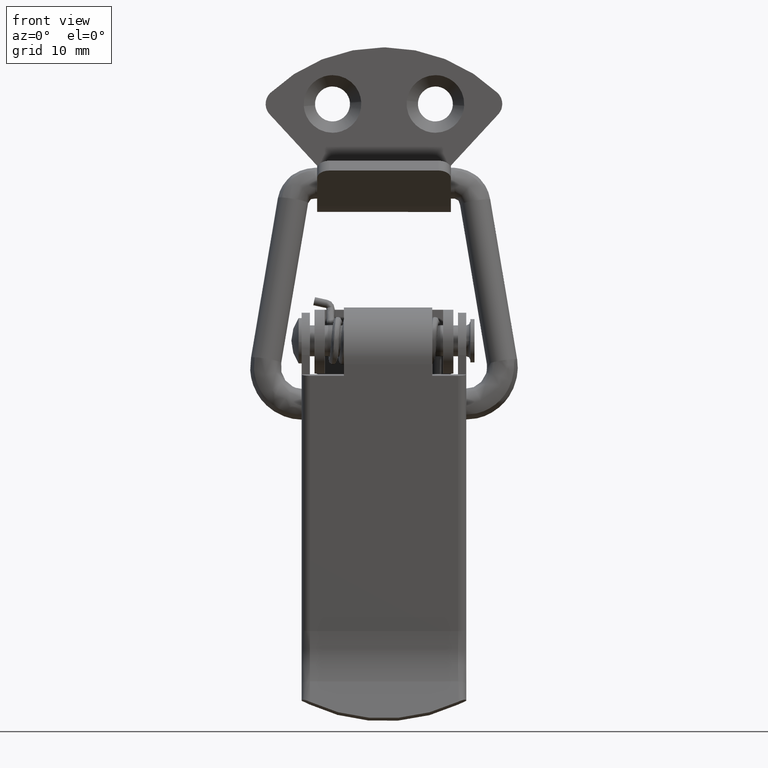
[diagram: clean part render]
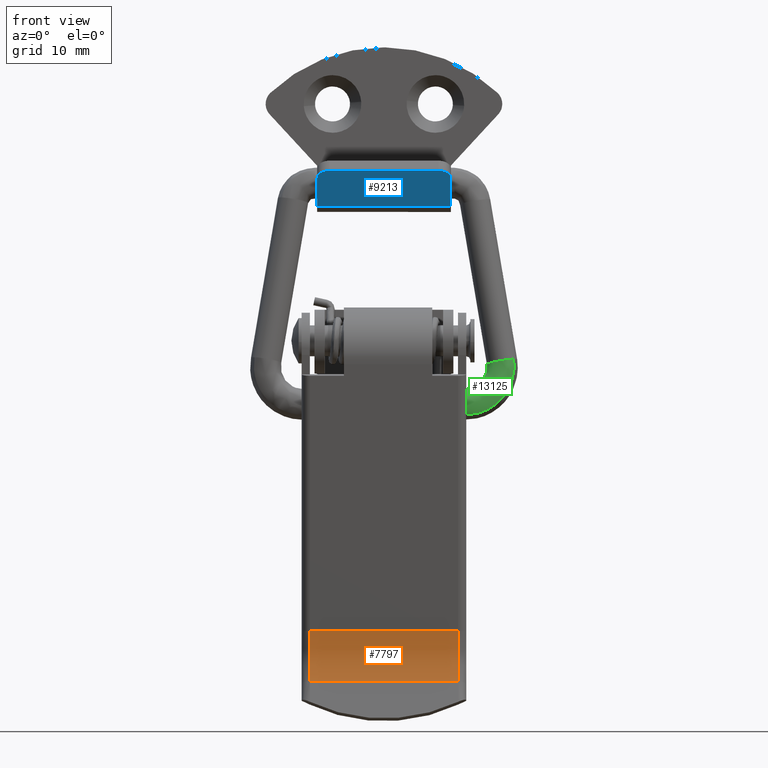
[diagram: same view with three faces highlighted in distinct colors, each labeled with its STEP entity id]
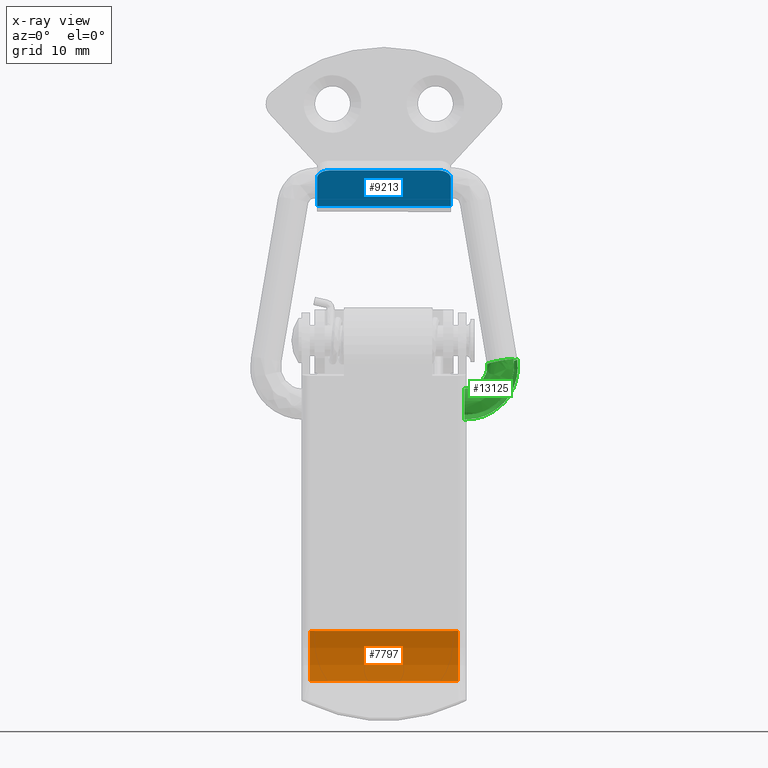
[diagram: x-ray of the same camera — body ghosted, the three highlighted faces saturated]
A machine part, front view with three faces highlighted in distinct colors.
The next image is the same camera in x-ray (body ghosted, the three faces saturated) — at least one of them is partly hidden behind the body in this view.
Their STEP definitions:

[orange] entity #7797 — the highlighted face is a freeform B-spline surface patch.
#6797=CARTESIAN_POINT('',(-2.790507143037480,7.200000000038510,-48.828581829893103));
#6798=VERTEX_POINT('',#6797);
#6844=CARTESIAN_POINT('',(-2.361913386887610,7.200000000038510,-43.929732780463347));
#6845=VERTEX_POINT('',#6844);
#6875=CARTESIAN_POINT('',(-2.361913386887625,7.200000000038510,-43.929732780463347));
#6876=CARTESIAN_POINT('',(-1.919888941644212,7.200000000038511,-46.436577980598912));
#6877=CARTESIAN_POINT('',(-2.790507143037486,7.200000000038510,-48.828581829893103));
#6885=(BOUNDED_CURVE()B_SPLINE_CURVE(2,(#6875,#6876,#6877),.UNSPECIFIED.,.F.,.U.)CURVE()GEOMETRIC_REPRESENTATION_ITEM()QUASI_UNIFORM_CURVE()RATIONAL_B_SPLINE_CURVE((1.0,0.965925826289068,1.0))REPRESENTATION_ITEM(''));
#6886=EDGE_CURVE('',#6845,#6798,#6885,.T.);
#6985=CARTESIAN_POINT('',(-2.361913386887610,-7.199999999961570,-43.929732780463347));
#6986=VERTEX_POINT('',#6985);
#7050=CARTESIAN_POINT('',(-2.790507143037480,-7.199999999961570,-48.828581829893103));
#7051=VERTEX_POINT('',#7050);
#7081=CARTESIAN_POINT('',(-2.790507143037488,-7.199999999961570,-48.828581829893103));
#7082=CARTESIAN_POINT('',(-1.919888941644212,-7.199999999961570,-46.436577980598919));
#7083=CARTESIAN_POINT('',(-2.361913386887625,-7.199999999961570,-43.929732780463361));
#7091=(BOUNDED_CURVE()B_SPLINE_CURVE(2,(#7081,#7082,#7083),.UNSPECIFIED.,.F.,.U.)CURVE()GEOMETRIC_REPRESENTATION_ITEM()QUASI_UNIFORM_CURVE()RATIONAL_B_SPLINE_CURVE((1.0,0.965925826289068,1.0))REPRESENTATION_ITEM(''));
#7092=EDGE_CURVE('',#7051,#6986,#7091,.T.);
#7764=CARTESIAN_POINT('',(-2.790507143037480,-7.199999999961570,-48.828581829893103));
#7765=CARTESIAN_POINT('',(-2.790507143037480,7.200000000038510,-48.828581829893103));
#7766=QUASI_UNIFORM_CURVE('',1,(#7764,#7765),.UNSPECIFIED.,.F.,.U.);
#7767=EDGE_CURVE('',#7051,#6798,#7766,.T.);
#7773=CARTESIAN_POINT('',(-2.877119383450284,-7.559999999961574,-49.057339807291108));
#7774=CARTESIAN_POINT('',(-2.877119383450284,7.569000000038512,-49.057339807291108));
#7775=CARTESIAN_POINT('',(-1.848300357566894,-7.559999999961573,-46.442223703869210));
#7776=CARTESIAN_POINT('',(-1.848300357566894,7.569000000038511,-46.442223703869210));
#7777=CARTESIAN_POINT('',(-2.407721154572937,-7.559999999961573,-43.688253988299849));
#7778=CARTESIAN_POINT('',(-2.407721154572937,7.569000000038511,-43.688253988299849));
#7786=(BOUNDED_SURFACE()B_SPLINE_SURFACE(1,2,((#7773,#7775,#7777),(#7774,#7776,#7778)),.UNSPECIFIED.,.F.,.F.,.U.)B_SPLINE_SURFACE_WITH_KNOTS((2,2),(3,3),(0.0,15.129000000000090),(0.0,5.502567149249801),.UNSPECIFIED.)GEOMETRIC_REPRESENTATION_ITEM()RATIONAL_B_SPLINE_SURFACE(((0.997173323268369,0.953808861718718,0.992163405002348),(0.997173323268369,0.953808861718718,0.992163405002348)))REPRESENTATION_ITEM('')SURFACE());
#7787=ORIENTED_EDGE('',*,*,#7767,.F.);
#7788=ORIENTED_EDGE('',*,*,#7092,.T.);
#7789=CARTESIAN_POINT('',(-2.361913386887610,-7.199999999961570,-43.929732780463347));
#7790=CARTESIAN_POINT('',(-2.361913386887610,7.200000000038510,-43.929732780463347));
#7791=QUASI_UNIFORM_CURVE('',1,(#7789,#7790),.UNSPECIFIED.,.F.,.U.);
#7792=EDGE_CURVE('',#6986,#6845,#7791,.T.);
#7793=ORIENTED_EDGE('',*,*,#7792,.T.);
#7794=ORIENTED_EDGE('',*,*,#6886,.T.);
#7795=EDGE_LOOP('',(#7787,#7788,#7793,#7794));
#7796=FACE_OUTER_BOUND('',#7795,.T.);
#7797=ADVANCED_FACE('',(#7796),#7786,.F.);

[blue] entity #9213 — the highlighted face is a freeform B-spline surface patch.
#8667=CARTESIAN_POINT('',(-6.199999999999590,5.300000000000080,0.828104566240683));
#8668=VERTEX_POINT('',#8667);
#8669=CARTESIAN_POINT('',(-5.247975991649800,6.500000000000100,0.097590851429855));
#8670=VERTEX_POINT('',#8669);
#8671=CARTESIAN_POINT('',(-6.199999999999590,5.300000000000080,0.828104566240683));
#8672=CARTESIAN_POINT('',(-6.199999999999574,5.797056274847905,0.828104566240674));
#8673=CARTESIAN_POINT('',(-5.921158623806288,6.148528137424075,0.614142052922361));
#8674=CARTESIAN_POINT('',(-5.642317247613004,6.500000000000246,0.400179539604048));
#8675=CARTESIAN_POINT('',(-5.247975991649800,6.500000000000100,0.097590851429855));
#8683=(BOUNDED_CURVE()B_SPLINE_CURVE(2,(#8671,#8672,#8673,#8674,#8675),.UNSPECIFIED.,.F.,.U.)B_SPLINE_CURVE_WITH_KNOTS((3,2,3),(0.0,0.500000000000000,1.0),.UNSPECIFIED.)CURVE()GEOMETRIC_REPRESENTATION_ITEM()RATIONAL_B_SPLINE_CURVE((1.0,0.923879532511251,1.0,0.923879532511251,1.0))REPRESENTATION_ITEM(''));
#8684=EDGE_CURVE('',#8668,#8670,#8683,.T.);
#8749=CARTESIAN_POINT('',(-6.199999999999590,-5.300000000000000,0.828104566240683));
#8750=VERTEX_POINT('',#8749);
#8756=CARTESIAN_POINT('',(-5.247975991650470,-6.500000000000000,0.097590851430373));
#8757=VERTEX_POINT('',#8756);
#8758=CARTESIAN_POINT('',(-5.247975991650470,-6.500000000000000,0.097590851430373));
#8759=CARTESIAN_POINT('',(-6.199999999999522,-6.499999999999595,0.828104566240729));
#8760=CARTESIAN_POINT('',(-6.199999999999590,-5.300000000000000,0.828104566240683));
#8768=(BOUNDED_CURVE()B_SPLINE_CURVE(2,(#8758,#8759,#8760),.UNSPECIFIED.,.F.,.U.)CURVE()GEOMETRIC_REPRESENTATION_ITEM()QUASI_UNIFORM_CURVE()RATIONAL_B_SPLINE_CURVE((1.0,0.707106781186667,1.0))REPRESENTATION_ITEM(''));
#8769=EDGE_CURVE('',#8757,#8750,#8768,.T.);
#8784=CARTESIAN_POINT('',(-1.704532001224340,6.499999999998489,-2.621389352815635));
#8785=VERTEX_POINT('',#8784);
#8786=CARTESIAN_POINT('',(-1.704532001224340,6.499999999998489,-2.621389352815635));
#8787=CARTESIAN_POINT('',(-5.247975991649800,6.500000000000100,0.097590851429855));
#8788=QUASI_UNIFORM_CURVE('',1,(#8786,#8787),.UNSPECIFIED.,.F.,.U.);
#8789=EDGE_CURVE('',#8785,#8670,#8788,.T.);
#8932=CARTESIAN_POINT('',(-1.704532001224340,-6.500000000001520,-2.621389352815635));
#8933=VERTEX_POINT('',#8932);
#8934=CARTESIAN_POINT('',(-5.247975991650470,-6.500000000000000,0.097590851430373));
#8935=CARTESIAN_POINT('',(-1.704532001224340,-6.500000000001520,-2.621389352815635));
#8936=QUASI_UNIFORM_CURVE('',1,(#8934,#8935),.UNSPECIFIED.,.F.,.U.);
#8937=EDGE_CURVE('',#8757,#8933,#8936,.T.);
#9182=CARTESIAN_POINT('',(-1.704532001224340,6.499999999998489,-2.621389352815635));
#9183=CARTESIAN_POINT('',(-1.704532001224340,-6.500000000001520,-2.621389352815635));
#9184=QUASI_UNIFORM_CURVE('',1,(#9182,#9183),.UNSPECIFIED.,.F.,.U.);
#9185=EDGE_CURVE('',#8785,#8933,#9184,.T.);
#9196=CARTESIAN_POINT('',(-1.479983399459556,-7.149349974805079,-2.793691555062669));
#9197=CARTESIAN_POINT('',(-6.424548400801321,-7.149349974805079,1.000406614283290));
#9198=CARTESIAN_POINT('',(-1.479983399459556,7.149350323490830,-2.793691555062669));
#9199=CARTESIAN_POINT('',(-6.424548400801321,7.149350323490830,1.000406614283290));
#9200=B_SPLINE_SURFACE_WITH_KNOTS('',1,1,((#9196,#9198),(#9197,#9199)),.UNSPECIFIED.,.F.,.F.,.U.,(2,2),(2,2),(0.0,6.232487783472040),(0.0,14.298700298295911),.UNSPECIFIED.);
#9201=ORIENTED_EDGE('',*,*,#8937,.F.);
#9202=ORIENTED_EDGE('',*,*,#8769,.T.);
#9203=CARTESIAN_POINT('',(-6.199999999999590,5.300000000000080,0.828104566240683));
#9204=CARTESIAN_POINT('',(-6.199999999999590,-5.300000000000000,0.828104566240683));
#9205=QUASI_UNIFORM_CURVE('',1,(#9203,#9204),.UNSPECIFIED.,.F.,.U.);
#9206=EDGE_CURVE('',#8668,#8750,#9205,.T.);
#9207=ORIENTED_EDGE('',*,*,#9206,.F.);
#9208=ORIENTED_EDGE('',*,*,#8684,.T.);
#9209=ORIENTED_EDGE('',*,*,#8789,.F.);
#9210=ORIENTED_EDGE('',*,*,#9185,.T.);
#9211=EDGE_LOOP('',(#9201,#9202,#9207,#9208,#9209,#9210));
#9212=FACE_OUTER_BOUND('',#9211,.T.);
#9213=ADVANCED_FACE('',(#9212),#9200,.T.);

[green] entity #13125 — the highlighted face is a freeform B-spline surface patch.
#12160=CARTESIAN_POINT('',(-1.087470120130206,-12.793823550704820,-17.628184217619349));
#12161=VERTEX_POINT('',#12160);
#12167=CARTESIAN_POINT('',(-0.330922227011682,-11.216846421213230,-17.970061983739310));
#12168=VERTEX_POINT('',#12167);
#12169=CARTESIAN_POINT('',(-0.330922227011682,-11.216846421213230,-17.970061983739310));
#12170=CARTESIAN_POINT('',(-0.323208595262400,-11.254935952752311,-17.964428172564109));
#12171=CARTESIAN_POINT('',(-0.317032860912607,-11.293313590069260,-17.958590585117850));
#12172=CARTESIAN_POINT('',(-0.266672929620274,-11.717342862969289,-17.892287160493218));
#12173=CARTESIAN_POINT('',(-0.380921290484208,-12.116484220646980,-17.813554300788951));
#12174=CARTESIAN_POINT('',(-0.748865987434872,-12.572771085775869,-17.699586509160660));
#12175=CARTESIAN_POINT('',(-0.908569863140957,-12.701123745336380,-17.661853243353839));
#12176=CARTESIAN_POINT('',(-1.087470120130206,-12.793823550704820,-17.628184217619349));
#12177=B_SPLINE_CURVE_WITH_KNOTS('',3,(#12169,#12170,#12171,#12172,#12173,#12174,#12175,#12176),.UNSPECIFIED.,.F.,.U.,(4,2,2,4),(0.737495048420838,0.750000000000000,0.875000000000000,0.940036262975326),.UNSPECIFIED.);
#12178=EDGE_CURVE('',#12168,#12161,#12177,.T.);
#12269=CARTESIAN_POINT('',(-1.969604485741077,-10.008558962770230,-18.008037156503100));
#12270=VERTEX_POINT('',#12269);
#12271=CARTESIAN_POINT('',(-1.969604485741077,-10.008558962770230,-18.008037156503100));
#12272=CARTESIAN_POINT('',(-1.581509952644368,-9.969650839488889,-18.053771057223329));
#12273=CARTESIAN_POINT('',(-1.176974130213577,-10.089613320299970,-18.074418082834971));
#12274=CARTESIAN_POINT('',(-0.594122953052786,-10.555038553331960,-18.054907702450350));
#12275=CARTESIAN_POINT('',(-0.400285128629959,-10.874298283260551,-18.020728944063961));
#12276=CARTESIAN_POINT('',(-0.330922227011682,-11.216846421213230,-17.970061983739310));
#12277=B_SPLINE_CURVE_WITH_KNOTS('',3,(#12271,#12272,#12273,#12274,#12275,#12276),.UNSPECIFIED.,.F.,.U.,(4,2,4),(0.500000000000000,0.625000000000000,0.737495048420838),.UNSPECIFIED.);
#12278=EDGE_CURVE('',#12270,#12168,#12277,.T.);
#12280=CARTESIAN_POINT('',(-2.755908091746378,-12.596367690307680,-17.492975387880779));
#12281=VERTEX_POINT('',#12280);
#12282=CARTESIAN_POINT('',(-2.755908091746378,-12.596367690307680,-17.492975387880779));
#12283=CARTESIAN_POINT('',(-3.042503300131364,-12.351988172122010,-17.505182466434501));
#12284=CARTESIAN_POINT('',(-3.233380554328527,-11.999004950979680,-17.545337693495970));
#12285=CARTESIAN_POINT('',(-3.323015717338375,-11.243730286179240,-17.663442955035450));
#12286=CARTESIAN_POINT('',(-3.208707451982580,-10.844742925923560,-17.742155936502652));
#12287=CARTESIAN_POINT('',(-2.724552054916020,-10.244762871260621,-17.892048433199601));
#12288=CARTESIAN_POINT('',(-2.357686271148560,-10.047464753662441,-17.962304935509451));
#12289=CARTESIAN_POINT('',(-1.969604485741077,-10.008558962770230,-18.008037156503100));
#12290=B_SPLINE_CURVE_WITH_KNOTS('',3,(#12282,#12283,#12284,#12285,#12286,#12287,#12288,#12289),.UNSPECIFIED.,.F.,.U.,(4,2,2,4),(0.129999973043368,0.250000000000000,0.375000000000000,0.500000000000000),.UNSPECIFIED.);
#12291=EDGE_CURVE('',#12281,#12270,#12290,.T.);
#12293=CARTESIAN_POINT('',(-1.620236052314972,-12.952371609362521,-17.547701627254352));
#12294=VERTEX_POINT('',#12293);
#12304=CARTESIAN_POINT('',(-1.087470120130206,-12.793823550704820,-17.628184217619349));
#12305=CARTESIAN_POINT('',(-1.252552893350440,-12.879025542070339,-17.597172560172361));
#12306=CARTESIAN_POINT('',(-1.433955350786946,-12.933919598360969,-17.569615734699969));
#12307=CARTESIAN_POINT('',(-1.620236052314972,-12.952371609362521,-17.547701627254352));
#12308=B_SPLINE_CURVE_WITH_KNOTS('',3,(#12304,#12305,#12306,#12307),.UNSPECIFIED.,.F.,.U.,(4,4),(0.940036262975326,1.0),.UNSPECIFIED.);
#12309=EDGE_CURVE('',#12161,#12294,#12308,.T.);
#12329=CARTESIAN_POINT('',(-0.714637346262169,-7.829629975996859,-21.771303482676270));
#12330=VERTEX_POINT('',#12329);
#12331=CARTESIAN_POINT('',(-1.658141471450089,-7.829629975996859,-23.283786567556550));
#12332=VERTEX_POINT('',#12331);
#12333=CARTESIAN_POINT('',(-0.714637346262169,-7.829629975996859,-21.771303482676270));
#12334=CARTESIAN_POINT('',(-0.711537730637880,-7.829629975996859,-21.810450188404861));
#12335=CARTESIAN_POINT('',(-0.709976325275512,-7.829629975996859,-21.849718331070282));
#12336=CARTESIAN_POINT('',(-0.709978391142118,-7.829629975996861,-22.085339342246030));
#12337=CARTESIAN_POINT('',(-0.749021310536569,-7.829629975996859,-22.281611893202388));
#12338=CARTESIAN_POINT('',(-0.899304745938325,-7.829629975996861,-22.644419086147799));
#12339=CARTESIAN_POINT('',(-1.010486131831204,-7.829629975996858,-22.810810978999019));
#12340=CARTESIAN_POINT('',(-1.288170268825211,-7.829629975996860,-23.088491704764060));
#12341=CARTESIAN_POINT('',(-1.454563763076102,-7.829629975996858,-23.199671282169842));
#12342=CARTESIAN_POINT('',(-1.643335457847693,-7.829629975996859,-23.277862602307621));
#12343=CARTESIAN_POINT('',(-1.650726699847485,-7.829629975996859,-23.280854448905490));
#12344=CARTESIAN_POINT('',(-1.658141471450089,-7.829629975996859,-23.283786567556550));
#12345=B_SPLINE_CURVE_WITH_KNOTS('',3,(#12333,#12334,#12335,#12336,#12337,#12338,#12339,#12340,#12341,#12342,#12343,#12344),.UNSPECIFIED.,.F.,.U.,(4,2,2,2,2,4),(0.737499592925876,0.750000000000000,0.812500000000000,0.875000000000000,0.937500000000000,0.940038078780311),.UNSPECIFIED.);
#12346=EDGE_CURVE('',#12330,#12332,#12345,.T.);
#12406=CARTESIAN_POINT('',(-2.209994493836288,-7.829629975996860,-23.388990918474850));
#12407=VERTEX_POINT('',#12406);
#12408=CARTESIAN_POINT('',(-1.658141471450089,-7.829629975996859,-23.283786567556550));
#12409=CARTESIAN_POINT('',(-1.833313464981698,-7.829629975996859,-23.353057095654361));
#12410=CARTESIAN_POINT('',(-2.021618427828611,-7.829629975996862,-23.388991259378770));
#12411=CARTESIAN_POINT('',(-2.209994493836288,-7.829629975996860,-23.388990918474850));
#12412=B_SPLINE_CURVE_WITH_KNOTS('',3,(#12408,#12409,#12410,#12411),.UNSPECIFIED.,.F.,.U.,(4,4),(0.940038078780311,1.0),.UNSPECIFIED.);
#12413=EDGE_CURVE('',#12332,#12407,#12412,.T.);
#12415=CARTESIAN_POINT('',(-3.303425674992386,-7.829629975996859,-22.915804680043340));
#12416=VERTEX_POINT('',#12415);
#12428=CARTESIAN_POINT('',(-2.209994493836293,-7.829629975996861,-20.388990918474850));
#12429=VERTEX_POINT('',#12428);
#12430=CARTESIAN_POINT('',(-3.303425674992386,-7.829629975996859,-22.915804680043340));
#12431=CARTESIAN_POINT('',(-3.427040587936353,-7.829629975996858,-22.784088861505730));
#12432=CARTESIAN_POINT('',(-3.526675502746189,-7.829629975996857,-22.629901739197241));
#12433=CARTESIAN_POINT('',(-3.670945758976619,-7.829629975996859,-22.281605471817219));
#12434=CARTESIAN_POINT('',(-3.709987294567935,-7.829629975996857,-22.085333702856449));
#12435=CARTESIAN_POINT('',(-3.709988499942832,-7.829629975996860,-21.692635752394430));
#12436=CARTESIAN_POINT('',(-3.670948169252147,-7.829629975996858,-21.496364080767702));
#12437=CARTESIAN_POINT('',(-3.520670050012211,-7.829629975996860,-21.133558669209400));
#12438=CARTESIAN_POINT('',(-3.409491389485702,-7.829629975996858,-20.967167677714730));
#12439=CARTESIAN_POINT('',(-3.131812427010670,-7.829629975996861,-20.689488640130641));
#12440=CARTESIAN_POINT('',(-2.965421379876430,-7.829629975996859,-20.578309848885031));
#12441=CARTESIAN_POINT('',(-2.602615679037063,-7.829629975996861,-20.428031301580582));
#12442=CARTESIAN_POINT('',(-2.406343773882681,-7.829629975996859,-20.388990673712900));
#12443=CARTESIAN_POINT('',(-2.209994493836293,-7.829629975996861,-20.388990918474850));
#12444=B_SPLINE_CURVE_WITH_KNOTS('',3,(#12430,#12431,#12432,#12433,#12434,#12435,#12436,#12437,#12438,#12439,#12440,#12441,#12442,#12443),.UNSPECIFIED.,.F.,.U.,(4,2,2,2,2,2,4),(0.129999065407237,0.187500000000000,0.250000000000000,0.312500000000000,0.375000000000000,0.437500000000000,0.500000000000000),.UNSPECIFIED.);
#12445=EDGE_CURVE('',#12416,#12429,#12444,.T.);
#12447=CARTESIAN_POINT('',(-2.209994493836293,-7.829629975996861,-20.388990918474850));
#12448=CARTESIAN_POINT('',(-2.013643619720058,-7.829629975996861,-20.388990812895990));
#12449=CARTESIAN_POINT('',(-1.817369756226630,-7.829629975996859,-20.428031672950240));
#12450=CARTESIAN_POINT('',(-1.454559705344186,-7.829629975996861,-20.578310835638181));
#12451=CARTESIAN_POINT('',(-1.288166268217472,-7.829629975996859,-20.689490009838590));
#12452=CARTESIAN_POINT('',(-1.010482456050607,-7.829629975996861,-20.967169906136970));
#12453=CARTESIAN_POINT('',(-0.899301337732885,-7.829629975996859,-21.133561373053240));
#12454=CARTESIAN_POINT('',(-0.764047369909554,-7.829629975996861,-21.460085936125221));
#12455=CARTESIAN_POINT('',(-0.727037676163386,-7.829629975996860,-21.614723297259211));
#12456=CARTESIAN_POINT('',(-0.714637346262169,-7.829629975996859,-21.771303482676270));
#12457=B_SPLINE_CURVE_WITH_KNOTS('',3,(#12447,#12448,#12449,#12450,#12451,#12452,#12453,#12454,#12455,#12456),.UNSPECIFIED.,.F.,.U.,(4,2,2,2,4),(0.500000000000000,0.562500000000000,0.625000000000000,0.687500000000000,0.737499592925876),.UNSPECIFIED.);
#12458=EDGE_CURVE('',#12429,#12330,#12457,.T.);
#12980=CARTESIAN_POINT('',(-3.275359540627173,-7.788165511742517,-22.945275574695192));
#12981=CARTESIAN_POINT('',(-3.549953552481467,-7.790341836505415,-22.667474647432631));
#12982=CARTESIAN_POINT('',(-3.709953913381004,-7.793579864302064,-22.279241280252570));
#12983=CARTESIAN_POINT('',(-3.709957288629869,-7.800396562820446,-21.495923403780719));
#12984=CARTESIAN_POINT('',(-3.548300069838655,-7.803934643811587,-21.105666455731910));
#12985=CARTESIAN_POINT('',(-2.993427612949430,-7.809254381599595,-20.550348433703601));
#12986=CARTESIAN_POINT('',(-2.209967266897114,-7.812755711009180,-20.227061603177091));
#12987=CARTESIAN_POINT('',(-1.426501642463856,-7.810630857652850,-20.550361070977509));
#12988=CARTESIAN_POINT('',(-0.871621144281466,-7.806290364555048,-21.105200502006522));
#12989=CARTESIAN_POINT('',(-0.548296999096419,-7.799757196442588,-21.888616034551429));
#12990=CARTESIAN_POINT('',(-0.871612557187495,-7.792655380986004,-22.672042689037269));
#12991=CARTESIAN_POINT('',(-1.436633684815285,-7.787246186561241,-23.236558570389011));
#12992=CARTESIAN_POINT('',(-1.844550647358027,-7.785468547502316,-23.399637459884559));
#12993=CARTESIAN_POINT('',(-2.250947350378273,-7.785207990426010,-23.388545933504570));
#12994=CARTESIAN_POINT('',(-3.276666660913341,-8.492141713283640,-22.958222014535899));
#12995=CARTESIAN_POINT('',(-3.551211142077712,-8.457363088659676,-22.679930508135371));
#12996=CARTESIAN_POINT('',(-3.711134781932718,-8.405618051794434,-22.290937253604088));
#12997=CARTESIAN_POINT('',(-3.710966063475526,-8.296684618829675,-21.505914866512221));
#12998=CARTESIAN_POINT('',(-3.549212468082754,-8.240144924987986,-21.114703351610860));
#12999=CARTESIAN_POINT('',(-2.994183385333802,-8.155134108689072,-20.557834020893011));
#13000=CARTESIAN_POINT('',(-2.210611462721599,-8.099182202149688,-20.233442074688728));
#13001=CARTESIAN_POINT('',(-1.427213778721760,-8.133137753537891,-20.557414461948380));
#13002=CARTESIAN_POINT('',(-0.872466162962060,-8.202499824698599,-21.113570033625720));
#13003=CARTESIAN_POINT('',(-0.549327139458170,-8.306901798693353,-21.898819113121078));
#13004=CARTESIAN_POINT('',(-0.872815573971837,-8.420391677350976,-22.683958030646821));
#13005=CARTESIAN_POINT('',(-1.437962205309235,-8.506832922670018,-23.249716969635550));
#13006=CARTESIAN_POINT('',(-1.845918837585397,-8.535240391953549,-23.413188769939179));
#13007=CARTESIAN_POINT('',(-2.252321271727154,-8.539404212623689,-23.402154007730410));
#13008=CARTESIAN_POINT('',(-3.263137883013464,-9.199895785544596,-22.824225611765460));
#13009=CARTESIAN_POINT('',(-3.538507747025766,-9.128112861088841,-22.554109147458291));
#13010=CARTESIAN_POINT('',(-3.699662306438050,-9.021309521152702,-22.177307591896529));
#13011=CARTESIAN_POINT('',(-3.702094992342637,-8.796460721925156,-21.418050933199119));
#13012=CARTESIAN_POINT('',(-3.541698326543075,-8.679752565083620,-21.040279189531852));
#13013=CARTESIAN_POINT('',(-2.988720644522920,-8.504265864075924,-20.503728051280760));
#13014=CARTESIAN_POINT('',(-2.206507002723681,-8.388758062917070,-20.192789259666519));
#13015=CARTESIAN_POINT('',(-1.422284800798708,-8.458856515058642,-20.508595171328992));
#13016=CARTESIAN_POINT('',(-0.865858549441843,-8.602043884916274,-21.048124619815869));
#13017=CARTESIAN_POINT('',(-0.540207096056245,-8.817553616064057,-21.808489222548310));
#13018=CARTESIAN_POINT('',(-0.860991429393918,-9.051802844158017,-22.566845246443361));
#13019=CARTESIAN_POINT('',(-1.424084314279384,-9.230218652674019,-23.112262759930250));
#13020=CARTESIAN_POINT('',(-1.831367516322865,-9.288851083739321,-23.269064539759889));
#13021=CARTESIAN_POINT('',(-2.237671321941654,-9.297445076997091,-23.257052906845999));
#13022=CARTESIAN_POINT('',(-3.206133164633303,-10.475915218587531,-22.259619787447608));
#13023=CARTESIAN_POINT('',(-3.484611207280636,-10.337851132009691,-22.020288419712799));
#13024=CARTESIAN_POINT('',(-3.650390318590825,-10.132430334742381,-21.689290948629822));
#13025=CARTESIAN_POINT('',(-3.662558888624542,-9.699966147477563,-21.026463796831170));
#13026=CARTESIAN_POINT('',(-3.507215650271546,-9.475494865576371,-20.698743955007881));
#13027=CARTESIAN_POINT('',(-2.961836488668558,-9.137971544167156,-20.237452707614029));
#13028=CARTESIAN_POINT('',(-2.184624299296607,-8.915808973027797,-19.976051028903779));
#13029=CARTESIAN_POINT('',(-1.397366855854443,-9.050633220433019,-20.261794252994619));
#13030=CARTESIAN_POINT('',(-0.834740635224370,-9.326033443818316,-20.739915823997642));
#13031=CARTESIAN_POINT('',(-0.499757676479004,-9.740535282615271,-21.407856107734059));
#13032=CARTESIAN_POINT('',(-0.810399090002731,-10.191079836965679,-22.065751121291701));
#13033=CARTESIAN_POINT('',(-1.365766625042855,-10.534236873555139,-22.534652556083550));
#13034=CARTESIAN_POINT('',(-1.770511060786532,-10.647007885607040,-22.666309009699830));
#13035=CARTESIAN_POINT('',(-2.176442749130655,-10.663537190287309,-22.650611724323689));
#13036=CARTESIAN_POINT('',(-3.163967556632713,-11.043445814137760,-21.841988606386550));
#13037=CARTESIAN_POINT('',(-3.444705148957563,-10.876131611155159,-21.625037051139731));
#13038=CARTESIAN_POINT('',(-3.613846166377653,-10.627190573536449,-21.327337731935099));
#13039=CARTESIAN_POINT('',(-3.633092422861634,-10.103104965150770,-20.734611847295980));
#13040=CARTESIAN_POINT('',(-3.481422869861379,-9.831077426673899,-20.443278189035759));
#13041=CARTESIAN_POINT('',(-2.941567597423862,-9.422046759039182,-20.036698552968140));
#13042=CARTESIAN_POINT('',(-2.167991309164227,-9.152817052429928,-19.811308822092609));
#13043=CARTESIAN_POINT('',(-1.378527339084458,-9.316205027220711,-20.075197402804580));
#13044=CARTESIAN_POINT('',(-0.811393932687797,-9.649951260718932,-20.508677347510510));
#13045=CARTESIAN_POINT('',(-0.469627258355240,-10.152269035835310,-21.109428011863240));
#13046=CARTESIAN_POINT('',(-0.772895083079064,-10.698265499412759,-21.694290979988718));
#13047=CARTESIAN_POINT('',(-1.322646527863075,-11.114123435374969,-22.107567593561900));
#13048=CARTESIAN_POINT('',(-1.725545359074630,-11.250785998888430,-22.220944173197289));
#13049=CARTESIAN_POINT('',(-2.131206529675873,-11.270817185179940,-22.202567532541948));
#13050=CARTESIAN_POINT('',(-3.006129429651815,-12.413737774368959,-20.278673703246611));
#13051=CARTESIAN_POINT('',(-3.295226210579683,-12.176479373072340,-20.144516111479319));
#13052=CARTESIAN_POINT('',(-3.476804576696901,-11.823470772785290,-19.970003077783709));
#13053=CARTESIAN_POINT('',(-3.522234685875626,-11.080295887630230,-19.636616352332350));
#13054=CARTESIAN_POINT('',(-3.384155906753504,-10.694549682382361,-19.479893131709471));
#13055=CARTESIAN_POINT('',(-2.864736224565755,-10.114527421574071,-19.275718728160552));
#13056=CARTESIAN_POINT('',(-2.104610927643825,-9.732748656662297,-19.183554952399948));
#13057=CARTESIAN_POINT('',(-1.306983927334941,-9.964439505352077,-19.366592429160111));
#13058=CARTESIAN_POINT('',(-0.723176217970805,-10.437705351180441,-19.634920982202569));
#13059=CARTESIAN_POINT('',(-0.356313234144394,-11.150012556041039,-19.987104108432820));
#13060=CARTESIAN_POINT('',(-0.632302517451661,-11.924257932425419,-20.301785523163790));
#13061=CARTESIAN_POINT('',(-1.161277274681319,-12.513961539732660,-20.509278490460321));
#13062=CARTESIAN_POINT('',(-1.557348304528544,-12.707754659256970,-20.555028801130149));
#13063=CARTESIAN_POINT('',(-1.962008696587758,-12.736159702887850,-20.526739903912450));
#13064=CARTESIAN_POINT('',(-2.859265017176734,-12.845947078943141,-18.824048456003691));
#13065=CARTESIAN_POINT('',(-3.156010517255114,-12.588598430233510,-18.765647950694639));
#13066=CARTESIAN_POINT('',(-3.348968478307432,-12.205751256748149,-18.703844632215969));
#13067=CARTESIAN_POINT('',(-3.418353299995310,-11.399943233078970,-18.607718445504709));
#13068=CARTESIAN_POINT('',(-3.292706762730936,-10.981810074429321,-18.574130929368650));
#13069=CARTESIAN_POINT('',(-2.791978257769063,-10.353292957904211,-18.555084140080510));
#13070=CARTESIAN_POINT('',(-2.044154064568340,-9.939741065362842,-18.584757205138221));
#13071=CARTESIAN_POINT('',(-1.239061913312468,-10.190710200027899,-18.693855755098429));
#13072=CARTESIAN_POINT('',(-0.640004262152718,-10.703457083750250,-18.811140566597079));
#13073=CARTESIAN_POINT('',(-0.250185778433771,-11.475444487976191,-18.935959900898581));
#13074=CARTESIAN_POINT('',(-0.501217499237797,-12.315053295631539,-19.003448003540569));
#13075=CARTESIAN_POINT('',(-1.011181962443750,-12.954649088042631,-19.022652649675940));
#13076=CARTESIAN_POINT('',(-1.401005327777792,-13.164865762381330,-19.006522683220052));
#13077=CARTESIAN_POINT('',(-1.804749955479545,-13.195679537777790,-18.969163556304238));
#13078=CARTESIAN_POINT('',(-2.720617991366896,-12.616511967556461,-17.450812684910950));
#13079=CARTESIAN_POINT('',(-3.024548839934728,-12.371455794670810,-17.463579790361909));
#13080=CARTESIAN_POINT('',(-3.228198323895284,-12.006843599626359,-17.507671146577160));
#13081=CARTESIAN_POINT('',(-3.320093942032887,-11.239234695283949,-17.634504166683261));
#13082=CARTESIAN_POINT('',(-3.206133209342172,-10.840802356290110,-17.716659233218280));
#13083=CARTESIAN_POINT('',(-2.722978384385453,-10.241698774772530,-17.871671756521629));
#13084=CARTESIAN_POINT('',(-1.986723173453299,-9.847356098491007,-18.015930332452900));
#13085=CARTESIAN_POINT('',(-1.174610084626546,-10.086671749157951,-18.055489687027531));
#13086=CARTESIAN_POINT('',(-0.561212242529476,-10.575509479315700,-18.030741425406081));
#13087=CARTESIAN_POINT('',(-0.149813563939711,-11.311246176046710,-17.941818738497570));
#13088=CARTESIAN_POINT('',(-0.377394758465738,-12.110943817479381,-17.777040037523381));
#13089=CARTESIAN_POINT('',(-0.869499559412679,-12.720029948947159,-17.619352846907940));
#13090=CARTESIAN_POINT('',(-1.253454099392283,-12.920191897428550,-17.545094832932239));
#13091=CARTESIAN_POINT('',(-1.656338528935848,-12.949530403077519,-17.499215834254581));
#13092=B_SPLINE_SURFACE_WITH_KNOTS('',3,3,((#12980,#12994,#13008,#13022,#13036,#13050,#13064,#13078),(#12981,#12995,#13009,#13023,#13037,#13051,#13065,#13079),(#12982,#12996,#13010,#13024,#13038,#13052,#13066,#13080),(#12983,#12997,#13011,#13025,#13039,#13053,#13067,#13081),(#12984,#12998,#13012,#13026,#13040,#13054,#13068,#13082),(#12985,#12999,#13013,#13027,#13041,#13055,#13069,#13083),(#12986,#13000,#13014,#13028,#13042,#13056,#13070,#13084),(#12987,#13001,#13015,#13029,#13043,#13057,#13071,#13085),(#12988,#13002,#13016,#13030,#13044,#13058,#13072,#13086),(#12989,#13003,#13017,#13031,#13045,#13059,#13073,#13087),(#12990,#13004,#13018,#13032,#13046,#13060,#13074,#13088),(#12991,#13005,#13019,#13033,#13047,#13061,#13075,#13089),(#12992,#13006,#13020,#13034,#13048,#13062,#13076,#13090),(#12993,#13007,#13021,#13035,#13049,#13063,#13077,#13091)),.UNSPECIFIED.,.F.,.F.,.U.,(4,2,2,1,2,1,2,4),(4,2,2,4),(0.0,1.172810876830996,2.351752121293485,3.530693365755976,4.709634610218465,5.888575854680955,7.067517099143444,8.287485498631806),(0.0,2.268974182305780,4.493408090327297,8.986764840287481),.UNSPECIFIED.);
#13093=ORIENTED_EDGE('',*,*,#12291,.T.);
#13094=ORIENTED_EDGE('',*,*,#12278,.T.);
#13095=ORIENTED_EDGE('',*,*,#12178,.T.);
#13096=ORIENTED_EDGE('',*,*,#12309,.T.);
#13097=CARTESIAN_POINT('',(-2.209994493836290,-7.829629975996859,-23.388990918474850));
#13098=CARTESIAN_POINT('',(-2.210742173068005,-8.568539084726625,-23.396396348474418));
#13099=CARTESIAN_POINT('',(-2.196079978542143,-9.309787288987126,-23.251173969289269));
#13100=CARTESIAN_POINT('',(-2.135509267440135,-10.661252031391960,-22.651248607966551));
#13101=CARTESIAN_POINT('',(-2.090310446716667,-11.268047894980180,-22.203574833618930));
#13102=CARTESIAN_POINT('',(-1.922370576026270,-12.722536071558149,-20.540206750737969));
#13103=CARTESIAN_POINT('',(-1.767226033885538,-13.182277809886630,-19.003570582866502));
#13104=CARTESIAN_POINT('',(-1.620236052314972,-12.952371609362521,-17.547701627254352));
#13105=B_SPLINE_CURVE_WITH_KNOTS('',3,(#13097,#13098,#13099,#13100,#13101,#13102,#13103,#13104),.UNSPECIFIED.,.F.,.U.,(4,2,2,4),(0.081843380828443,0.102035494838974,0.122227608849505,0.162611836870567),.UNSPECIFIED.);
#13106=EDGE_CURVE('',#12407,#12294,#13105,.T.);
#13107=ORIENTED_EDGE('',*,*,#13106,.F.);
#13108=ORIENTED_EDGE('',*,*,#12413,.F.);
#13109=ORIENTED_EDGE('',*,*,#12346,.F.);
#13110=ORIENTED_EDGE('',*,*,#12458,.F.);
#13111=ORIENTED_EDGE('',*,*,#12445,.F.);
#13112=CARTESIAN_POINT('',(-3.303425674992386,-7.829629975996859,-22.915804680043340));
#13113=CARTESIAN_POINT('',(-3.304150131100471,-8.515980232874098,-22.922985243157079));
#13114=CARTESIAN_POINT('',(-3.290681479377414,-9.204699133192598,-22.789590755370359));
#13115=CARTESIAN_POINT('',(-3.234573485982387,-10.460963315853929,-22.233880969692141));
#13116=CARTESIAN_POINT('',(-3.192651699423666,-11.025326219057691,-21.818672636045900));
#13117=CARTESIAN_POINT('',(-3.036755498201999,-12.379018766938639,-20.274615372561179));
#13118=CARTESIAN_POINT('',(-2.892566137065341,-12.809516560166990,-18.846501020539218));
#13119=CARTESIAN_POINT('',(-2.755908091746378,-12.596367690307680,-17.492975387880779));
#13120=B_SPLINE_CURVE_WITH_KNOTS('',3,(#13112,#13113,#13114,#13115,#13116,#13117,#13118,#13119),.UNSPECIFIED.,.F.,.U.,(4,2,2,4),(0.081843380828443,0.102035494838974,0.122227608849505,0.162611836870567),.UNSPECIFIED.);
#13121=EDGE_CURVE('',#12416,#12281,#13120,.T.);
#13122=ORIENTED_EDGE('',*,*,#13121,.T.);
#13123=EDGE_LOOP('',(#13093,#13094,#13095,#13096,#13107,#13108,#13109,#13110,#13111,#13122));
#13124=FACE_OUTER_BOUND('',#13123,.T.);
#13125=ADVANCED_FACE('',(#13124),#13092,.F.);